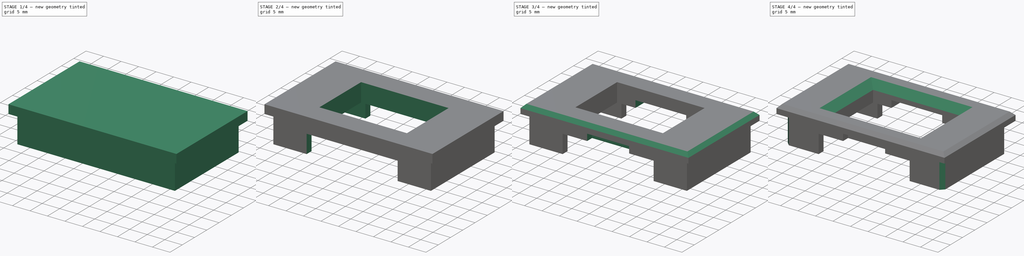
[diagram: build sequence overview — one tinted view per stage of 4, left to right]
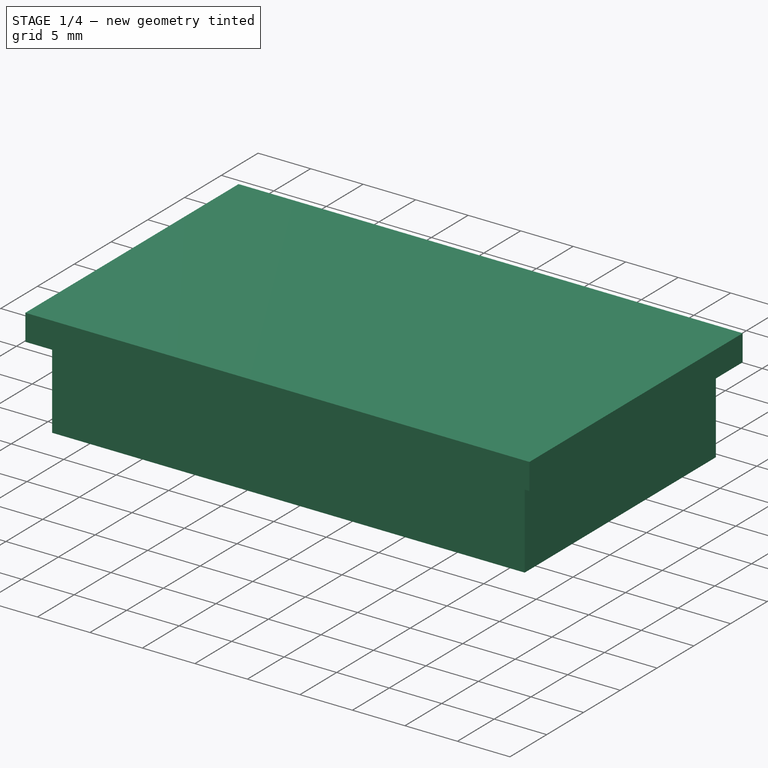
[diagram: stage 1 of 4 — iso view after this stage's code; geometry added in this stage tinted green]
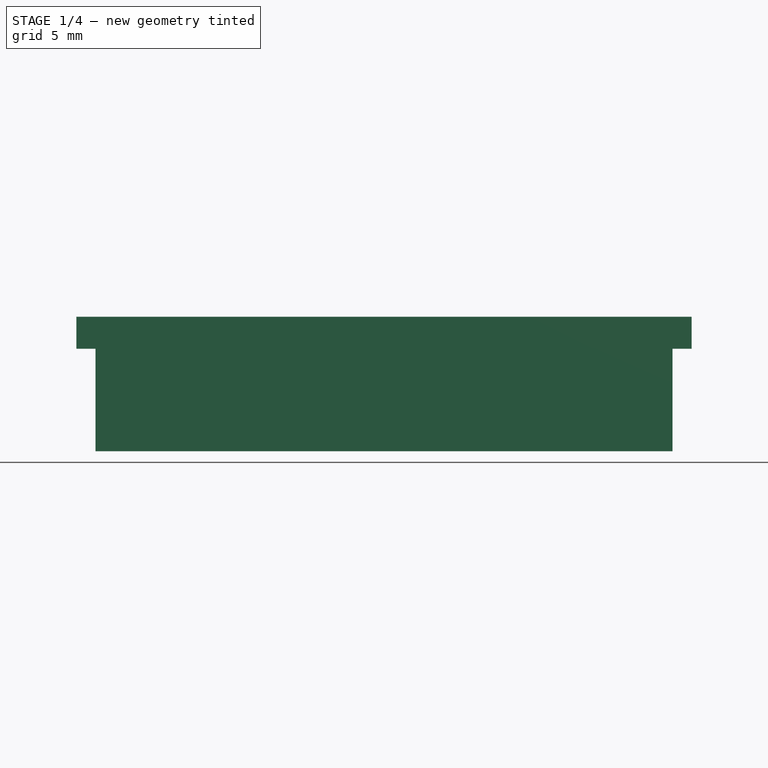
[diagram: stage 1 of 4 — front view after this stage's code; geometry added in this stage tinted green]
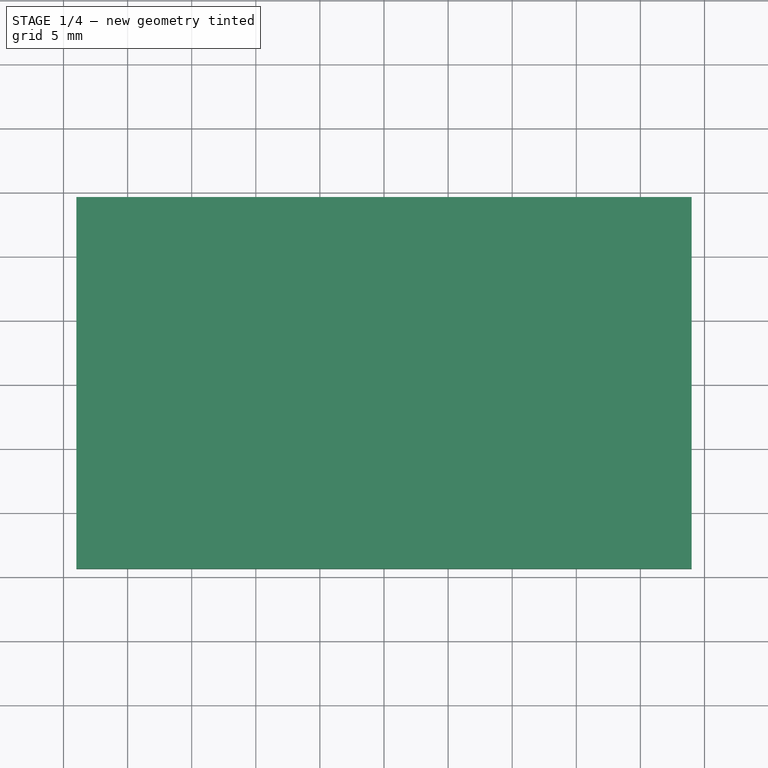
[diagram: stage 1 of 4 — top view after this stage's code; geometry added in this stage tinted green]
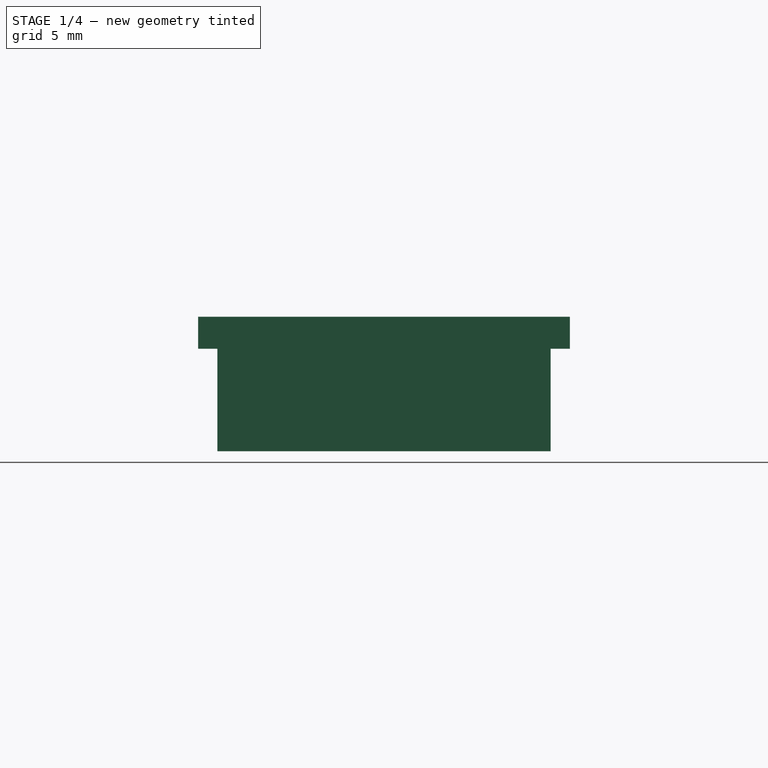
[diagram: stage 1 of 4 — right view after this stage's code; geometry added in this stage tinted green]
FCSTD DOCUMENT  (FreeCAD 0.19R)
Label: display-bracket
License: All rights reserved
LicenseURL: http://en.wikipedia.org/wiki/All_rights_reserved
objects: Sketcher::SketchObject×7, PartDesign::Pocket×5, PartDesign::Chamfer×3, PartDesign::Pad×2, PartDesign::Body×1, App::Part×1
note: 28 computed .brp shape members not serialized (recipe doc carries the construction recipe); baked Part::Feature solids carry a one-line shape summary decoded from their .brp

FEATURE [Sketcher::SketchObject] Sketch
  FullyConstrained = true
  MapMode = 5
  Support = -> [XY_Plane001]
  sketch-geometry (6):
    g0: LineSegment StartX=-22.5 StartY=-13 StartZ=0 EndX=22.5 EndY=-13 EndZ=0
    g1: LineSegment StartX=22.5 StartY=-13 StartZ=0 EndX=22.5 EndY=13 EndZ=0
    g2: LineSegment StartX=22.5 StartY=13 StartZ=0 EndX=-22.5 EndY=13 EndZ=0
    g3: LineSegment StartX=-22.5 StartY=13 StartZ=0 EndX=-22.5 EndY=-13 EndZ=0
    g4: GeomPoint X=-22.5 Y=0 Z=0
    g5: GeomPoint X=0 Y=-13 Z=0
  constraints (14):
    c: Coincident(g0,g1)
    c: Coincident(g1,g2)
    c: Coincident(g2,g3)
    c: Coincident(g3,g0)
    c: Horizontal(g0)
    c: Horizontal(g2)
    c: Vertical(g1)
    c: Vertical(g3)
    c: Distance(g0) = 45
    c: Distance(g3) = 26
    c: Symmetric(g2,g0,g4)
    c: PointOnObject(g4,g-1)
    c: Symmetric(g0,g0,g5)
    c: PointOnObject(g5,g-2)
FEATURE [PartDesign::Pad] Pad
  Direction = (1,1,1)
  Length = 8
  Length2 = 100
  Profile = -> Sketch
  Type = 0
FEATURE [Sketcher::SketchObject] Sketch001
  FullyConstrained = true
  MapMode = 5
  Placement = pos=(0,0,8) rot=(0,0,1;0rad)
  Support = -> [Pad]
  sketch-geometry (6):
    g0: LineSegment StartX=-24 StartY=-14.5 StartZ=0 EndX=24 EndY=-14.5 EndZ=0
    g1: LineSegment StartX=24 StartY=-14.5 StartZ=0 EndX=24 EndY=14.5 EndZ=0
    g2: LineSegment StartX=24 StartY=14.5 StartZ=0 EndX=-24 EndY=14.5 EndZ=0
    g3: LineSegment StartX=-24 StartY=14.5 StartZ=0 EndX=-24 EndY=-14.5 EndZ=0
    g4: GeomPoint X=-24 Y=0 Z=0
    g5: GeomPoint X=0 Y=-14.5 Z=0
  constraints (14):
    c: Coincident(g0,g1)
    c: Coincident(g1,g2)
    c: Coincident(g2,g3)
    c: Coincident(g3,g0)
    c: Horizontal(g0)
    c: Horizontal(g2)
    c: Vertical(g1)
    c: Vertical(g3)
    c: Symmetric(g2,g0,g4)
    c: Symmetric(g0,g0,g5)
    c: PointOnObject(g5,g-2)
    c: PointOnObject(g4,g-1)
    c: Distance(g3) = 29
    c: Distance(g0) = 48
FEATURE [PartDesign::Pad] Pad001
  BaseFeature = -> Pad
  Direction = (1,1,1)
  Length = 2.5
  Length2 = 100
  Profile = -> Sketch001
  Type = 0
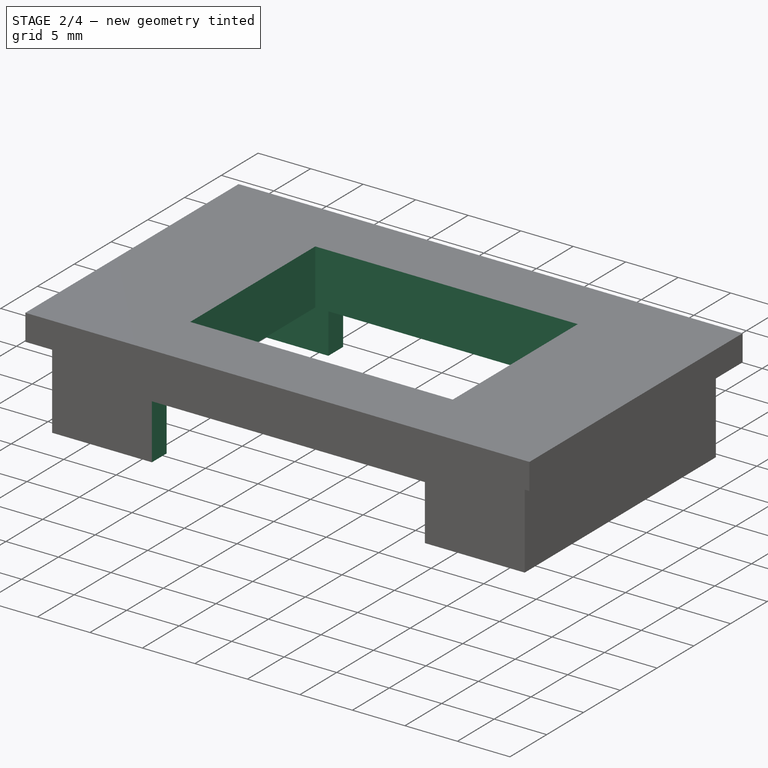
[diagram: stage 2 of 4 — iso view after this stage's code; geometry added in this stage tinted green]
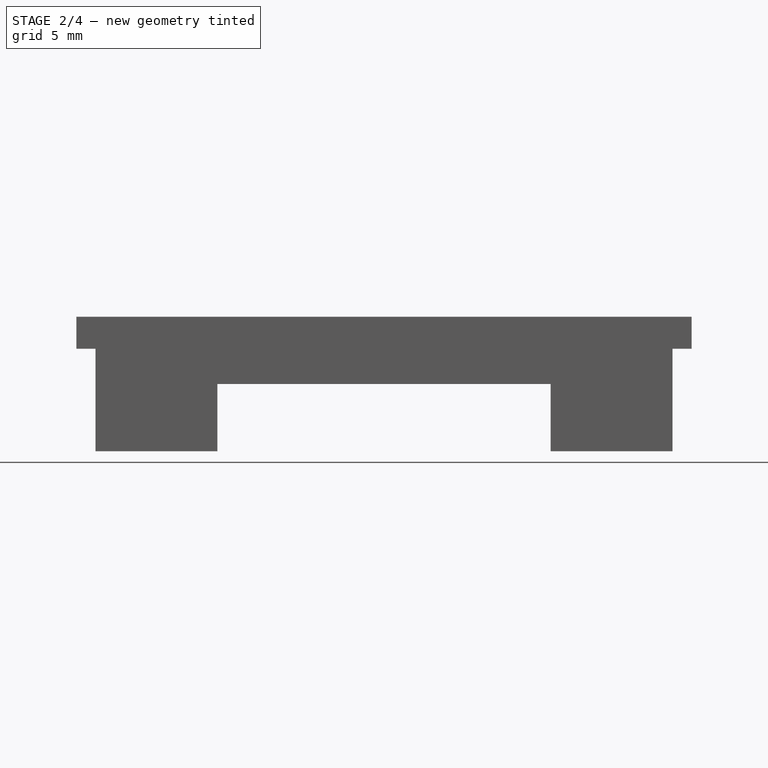
[diagram: stage 2 of 4 — front view after this stage's code; geometry added in this stage tinted green]
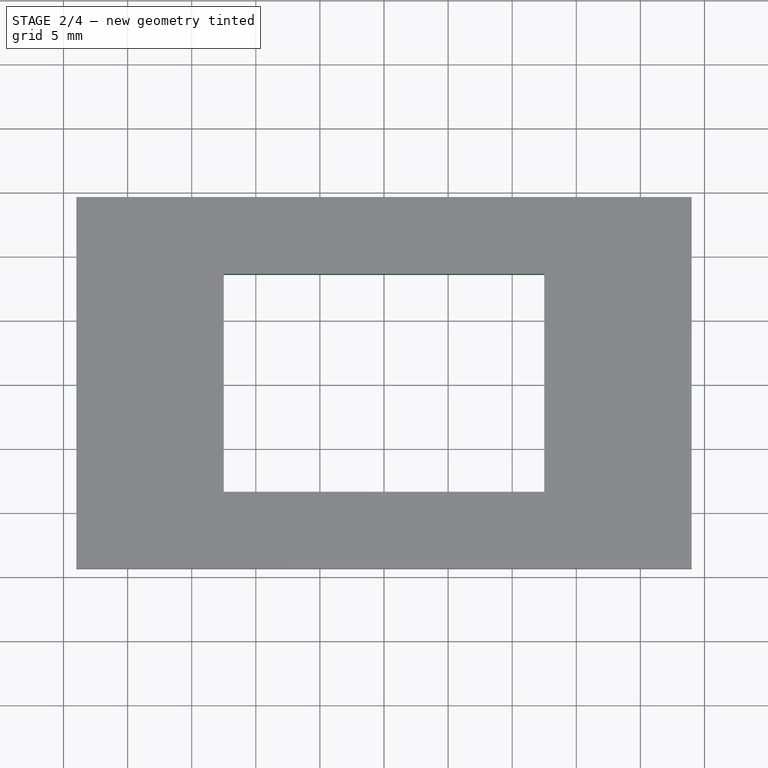
[diagram: stage 2 of 4 — top view after this stage's code; geometry added in this stage tinted green]
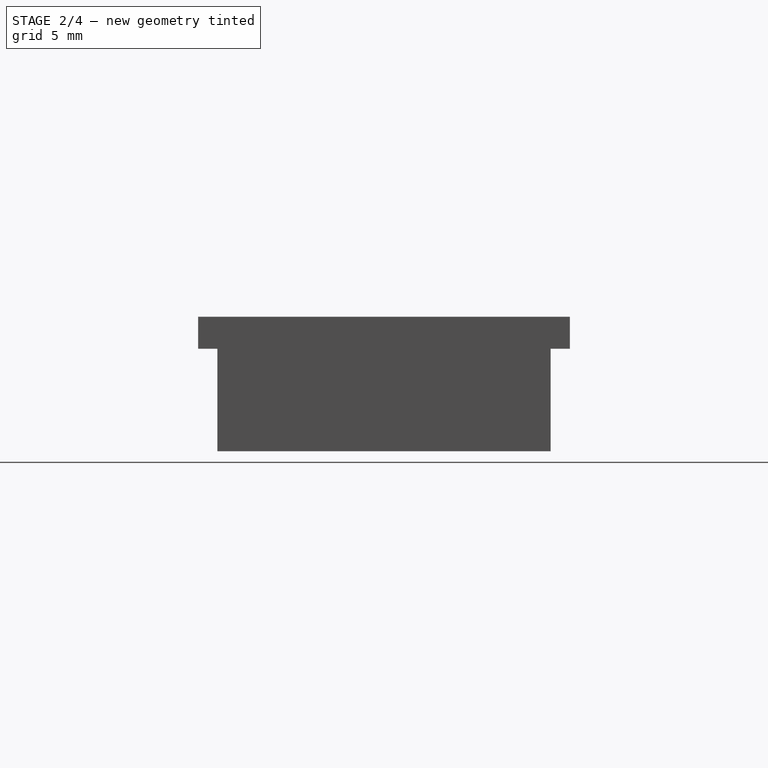
[diagram: stage 2 of 4 — right view after this stage's code; geometry added in this stage tinted green]
FEATURE [Sketcher::SketchObject] Sketch002
  FullyConstrained = true
  MapMode = 5
  Placement = pos=(0,0,10.5) rot=(0,0,1;0rad)
  Support = -> [Pad001]
  sketch-geometry (6):
    g0: LineSegment StartX=-12.5 StartY=-8.5 StartZ=0 EndX=12.5 EndY=-8.5 EndZ=0
    g1: LineSegment StartX=12.5 StartY=-8.5 StartZ=0 EndX=12.5 EndY=8.5 EndZ=0
    g2: LineSegment StartX=12.5 StartY=8.5 StartZ=0 EndX=-12.5 EndY=8.5 EndZ=0
    g3: LineSegment StartX=-12.5 StartY=8.5 StartZ=0 EndX=-12.5 EndY=-8.5 EndZ=0
    g4: GeomPoint X=-12.5 Y=0 Z=0
    g5: GeomPoint X=0 Y=-8.5 Z=0
  constraints (14):
    c: Coincident(g0,g1)
    c: Coincident(g1,g2)
    c: Coincident(g2,g3)
    c: Coincident(g3,g0)
    c: Horizontal(g0)
    c: Horizontal(g2)
    c: Vertical(g1)
    c: Vertical(g3)
    c: Distance(g2) = 25
    c: Distance(g3) = 17
    c: Symmetric(g2,g0,g4)
    c: Symmetric(g0,g0,g5)
    c: PointOnObject(g4,g-1)
    c: PointOnObject(g5,g-2)
FEATURE [PartDesign::Pocket] Pocket
  BaseFeature = -> Pad001
  Length = 5
  Length2 = 100
  Profile = -> Sketch002
  Type = 1
FEATURE [Sketcher::SketchObject] Sketch003
  ExternalGeometry = -> [Pocket]
  FullyConstrained = true
  MapMode = 5
  Placement = pos=(0,0,0) rot=(1,0,0;3.14159rad)
  Support = -> [Pocket]
  sketch-geometry (4):
    g0: LineSegment StartX=-20.5 StartY=-11 StartZ=0 EndX=20.5 EndY=-11 EndZ=0
    g1: LineSegment StartX=20.5 StartY=-11 StartZ=0 EndX=20.5 EndY=11 EndZ=0
    g2: LineSegment StartX=20.5 StartY=11 StartZ=0 EndX=-20.5 EndY=11 EndZ=0
    g3: LineSegment StartX=-20.5 StartY=11 StartZ=0 EndX=-20.5 EndY=-11 EndZ=0
  constraints (12):
    c: Coincident(g0,g1)
    c: Coincident(g1,g2)
    c: Coincident(g2,g3)
    c: Coincident(g3,g0)
    c: Horizontal(g0)
    c: Horizontal(g2)
    c: Vertical(g1)
    c: Vertical(g3)
    c: DistanceX(g1,g-5) = 2
    c: DistanceX(g-4,g2) = 2
    c: DistanceY(g2,g-4) = 2
    c: DistanceY(g-6,g0) = 2
FEATURE [PartDesign::Pocket] Pocket001
  BaseFeature = -> Pocket
  Length = 0
  Length2 = 100
  Offset = -2.75
  Profile = -> Sketch003
  Type = 3
  UpToFace = -> Pocket [Face4]
FEATURE [Sketcher::SketchObject] Sketch004
  FullyConstrained = true
  MapMode = 5
  Placement = pos=(0,0,5.25) rot=(1,0,0;3.14159rad)
  Support = -> [Pocket001]
  sketch-geometry (6):
    g0: LineSegment StartX=-13 StartY=-13.75 StartZ=0 EndX=13 EndY=-13.75 EndZ=0
    g1: LineSegment StartX=13 StartY=-13.75 StartZ=0 EndX=13 EndY=13.75 EndZ=0
    g2: LineSegment StartX=13 StartY=13.75 StartZ=0 EndX=-13 EndY=13.75 EndZ=0
    g3: LineSegment StartX=-13 StartY=13.75 StartZ=0 EndX=-13 EndY=-13.75 EndZ=0
    g4: GeomPoint X=-13 Y=0 Z=0
    g5: GeomPoint X=0 Y=-13.75 Z=0
  constraints (14):
    c: Coincident(g0,g1)
    c: Coincident(g1,g2)
    c: Coincident(g2,g3)
    c: Coincident(g3,g0)
    c: Horizontal(g0)
    c: Horizontal(g2)
    c: Vertical(g1)
    c: Vertical(g3)
    c: Distance(g3) = 27.5
    c: Distance(g0) = 26
    c: Symmetric(g0,g0,g5)
    c: Symmetric(g2,g0,g4)
    c: PointOnObject(g4,g-1)
    c: PointOnObject(g5,g-2)
FEATURE [PartDesign::Pocket] Pocket002
  BaseFeature = -> Pocket001
  Length = 5
  Length2 = 100
  Profile = -> Sketch004
  Reversed = true
  Type = 1
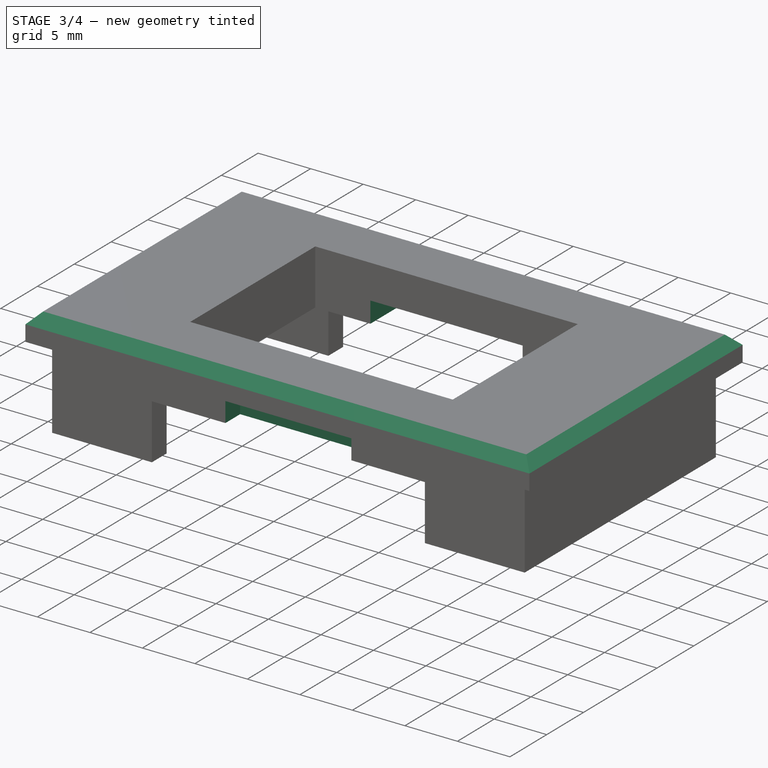
[diagram: stage 3 of 4 — iso view after this stage's code; geometry added in this stage tinted green]
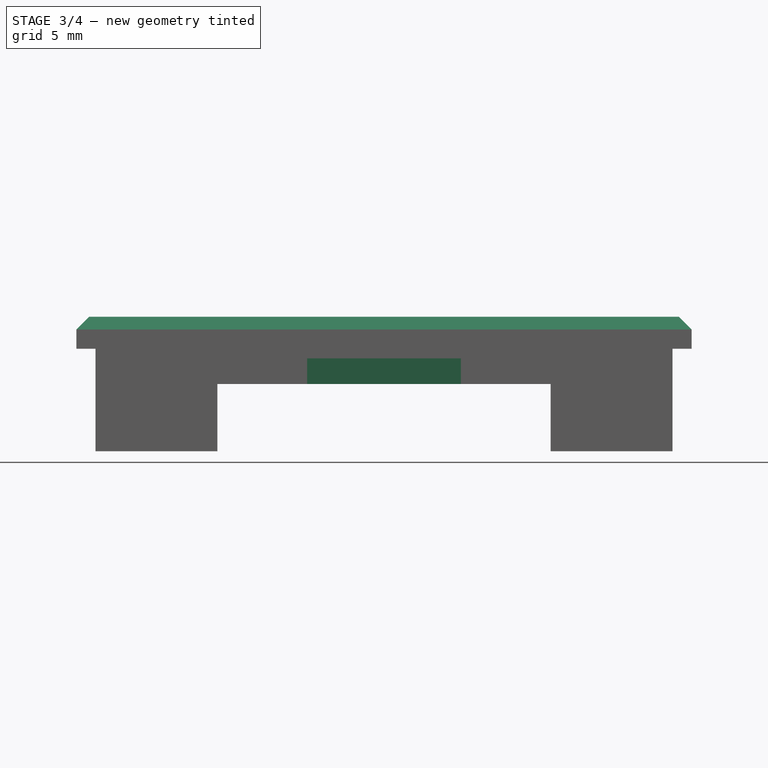
[diagram: stage 3 of 4 — front view after this stage's code; geometry added in this stage tinted green]
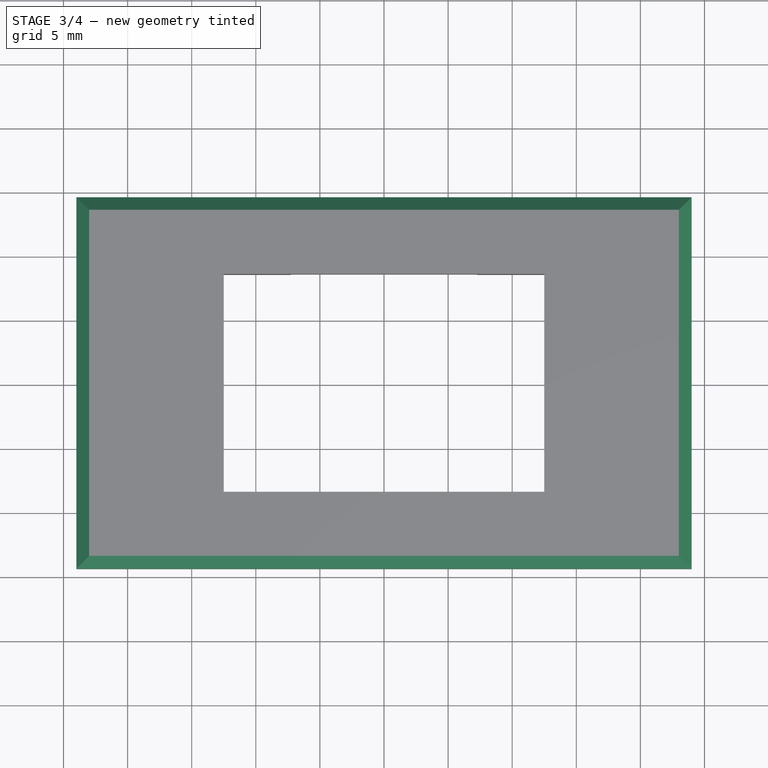
[diagram: stage 3 of 4 — top view after this stage's code; geometry added in this stage tinted green]
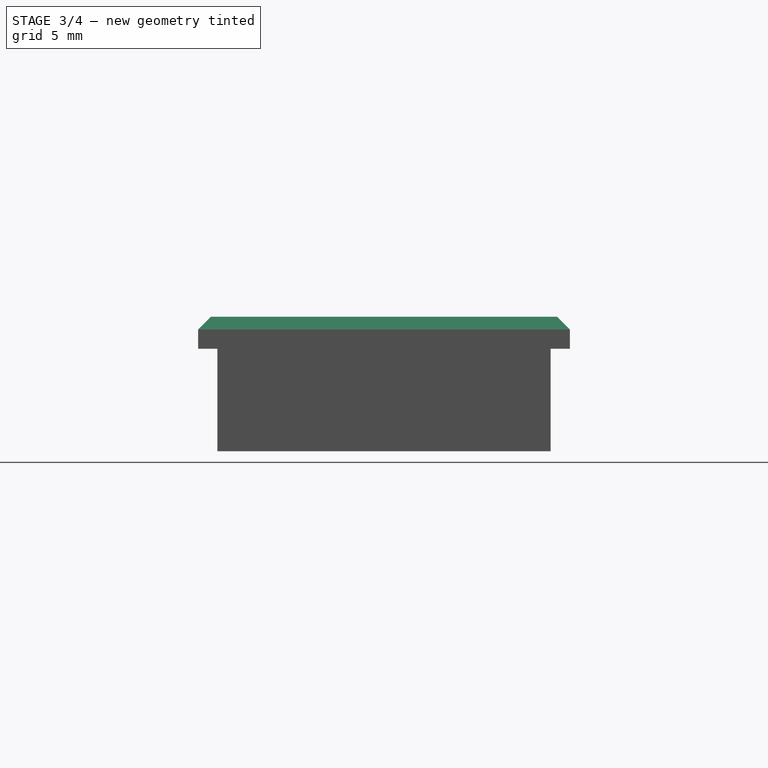
[diagram: stage 3 of 4 — right view after this stage's code; geometry added in this stage tinted green]
FEATURE [Sketcher::SketchObject] Sketch005  label="Sketch005-pin-pocket"
  ExternalGeometry = -> [Pocket002]
  FullyConstrained = true
  MapMode = 5
  Placement = pos=(0,0,5.25) rot=(1,0,0;3.14159rad)
  Support = -> [Pocket002]
  sketch-geometry (5):
    g0: LineSegment StartX=-6 StartY=11 StartZ=0 EndX=6 EndY=11 EndZ=0
    g1: LineSegment StartX=6 StartY=11 StartZ=0 EndX=6 EndY=13.5 EndZ=0
    g2: LineSegment StartX=6 StartY=13.5 StartZ=0 EndX=-6 EndY=13.5 EndZ=0
    g3: LineSegment StartX=-6 StartY=13.5 StartZ=0 EndX=-6 EndY=11 EndZ=0
    g4: GeomPoint X=0 Y=11 Z=0
  constraints (13):
    c: Coincident(g0,g1)
    c: Coincident(g1,g2)
    c: Coincident(g2,g3)
    c: Coincident(g3,g0)
    c: Horizontal(g0)
    c: Horizontal(g2)
    c: Vertical(g1)
    c: Vertical(g3)
    c: Symmetric(g0,g0,g4)
    c: PointOnObject(g4,g-2)
    c: Distance(g2) = 12
    c: DistanceY(g-4,g0) = 2.5
    c: DistanceY(g-4,g1) = 5
FEATURE [PartDesign::Pocket] Pocket003
  BaseFeature = -> Pocket002
  Length = 2
  Length2 = 100
  Profile = -> Sketch005
  Type = 0
FEATURE [Sketcher::SketchObject] Sketch006  label="Sketch006-flex-pocket"
  ExternalGeometry = -> [Pocket003]
  FullyConstrained = true
  MapMode = 5
  Placement = pos=(0,0,5.25) rot=(1,0,0;3.14159rad)
  Support = -> [Pocket003]
  sketch-geometry (5):
    g0: LineSegment StartX=-7.25 StartY=-13 StartZ=0 EndX=7.25 EndY=-13 EndZ=0
    g1: LineSegment StartX=7.25 StartY=-13 StartZ=0 EndX=7.25 EndY=-8.5 EndZ=0
    g2: LineSegment StartX=7.25 StartY=-8.5 StartZ=0 EndX=-7.25 EndY=-8.5 EndZ=0
    g3: LineSegment StartX=-7.25 StartY=-8.5 StartZ=0 EndX=-7.25 EndY=-13 EndZ=0
    g4: GeomPoint X=0 Y=-8.5 Z=0
  constraints (13):
    c: Coincident(g0,g1)
    c: Coincident(g1,g2)
    c: Coincident(g2,g3)
    c: Coincident(g3,g0)
    c: Horizontal(g0)
    c: Horizontal(g2)
    c: Vertical(g1)
    c: Vertical(g3)
    c: Distance(g2) = 14.5
    c: Symmetric(g2,g1,g4)
    c: PointOnObject(g4,g-2)
    c: PointOnObject(g1,g-3)
    c: PointOnObject(g0,g-4)
FEATURE [PartDesign::Pocket] Pocket004
  BaseFeature = -> Pocket003
  Length = 2
  Length2 = 100
  Profile = -> Sketch006
  Type = 0
FEATURE [PartDesign::Chamfer] Chamfer
  Angle = 45
  Base = -> Pocket004 [Edge10,Edge4,Edge16,Edge7]
  BaseFeature = -> Pocket004
  ChamferType = 0
  FlipDirection = false
  Size = 1
  Size2 = 1
  SupportTransform = false
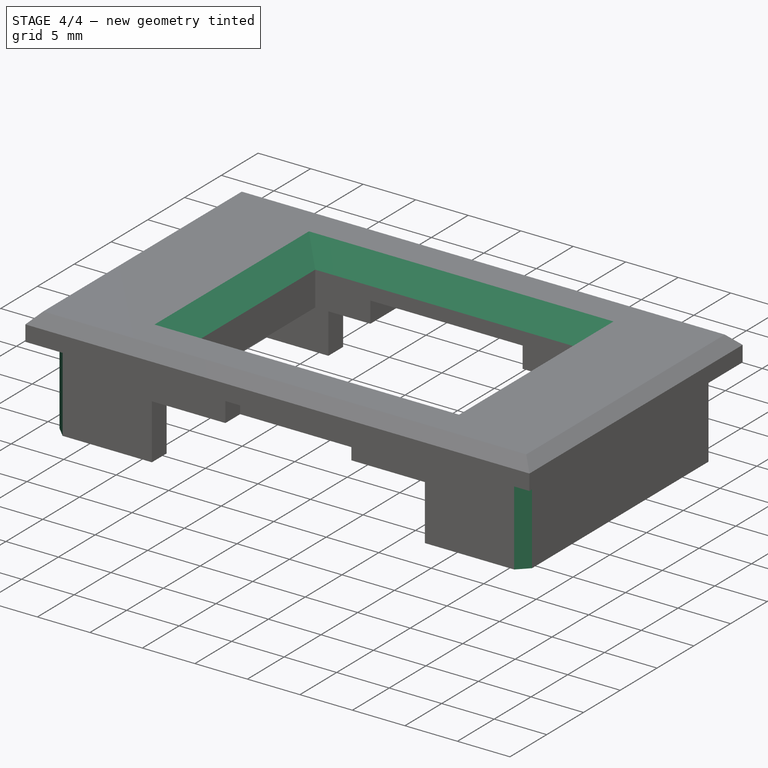
[diagram: stage 4 of 4 — iso view after this stage's code; geometry added in this stage tinted green]
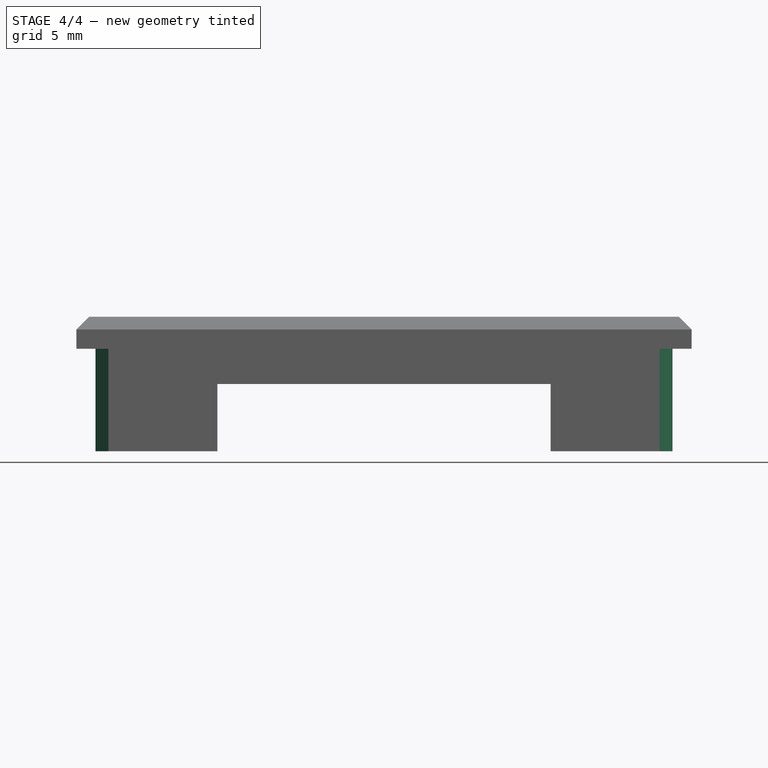
[diagram: stage 4 of 4 — front view after this stage's code; geometry added in this stage tinted green]
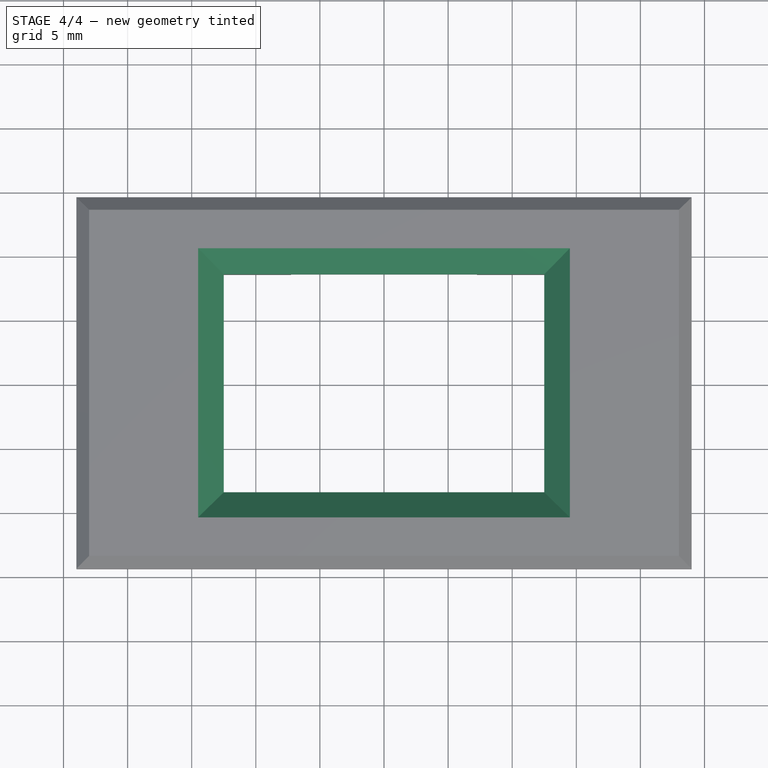
[diagram: stage 4 of 4 — top view after this stage's code; geometry added in this stage tinted green]
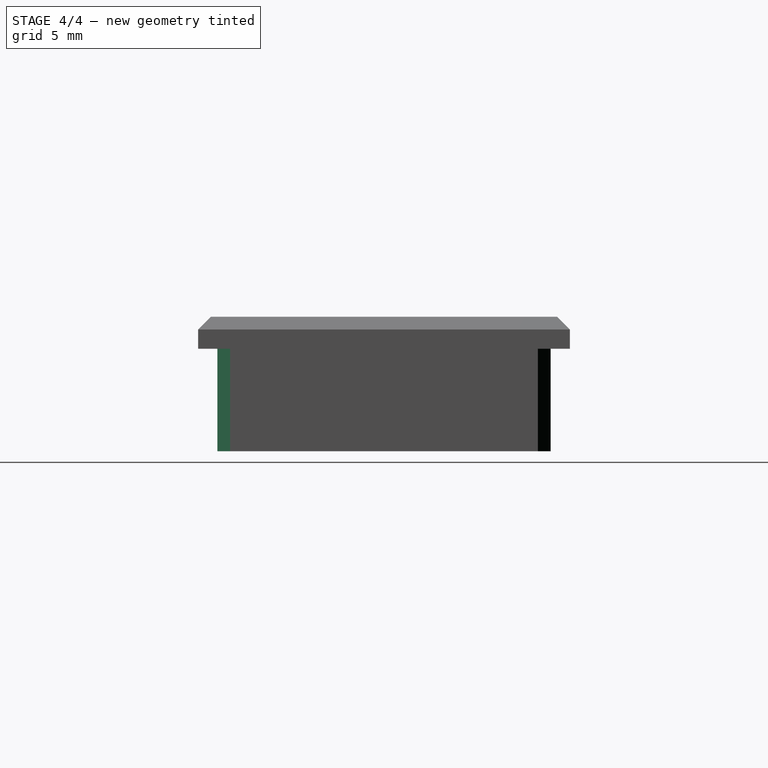
[diagram: stage 4 of 4 — right view after this stage's code; geometry added in this stage tinted green]
FEATURE [PartDesign::Chamfer] Chamfer001
  Angle = 45
  Base = -> Chamfer [Edge26,Edge27,Edge24,Edge25]
  BaseFeature = -> Chamfer
  ChamferType = 0
  FlipDirection = false
  Size = 2
  Size2 = 1
  SupportTransform = false
FEATURE [PartDesign::Chamfer] Chamfer002
  Angle = 45
  Base = -> Chamfer001 [Edge88,Edge98,Edge89,Edge97]
  BaseFeature = -> Chamfer001
  ChamferType = 0
  FlipDirection = false
  Size = 1
  Size2 = 1
  SupportTransform = false
FEATURE [PartDesign::Body] Body
  Group = -> [Sketch,Pad,Sketch001,Pad001,Sketch002,Pocket,Sketch003,Pocket001,Sketch004,Pocket002,Sketch005,Pocket003,Sketch006,Pocket004,Chamfer,Chamfer001,Chamfer002]
  Origin = -> Origin001
  Tip = -> Chamfer002
FEATURE [App::Part] Part
  Group = -> [Body]
  Origin = -> Origin
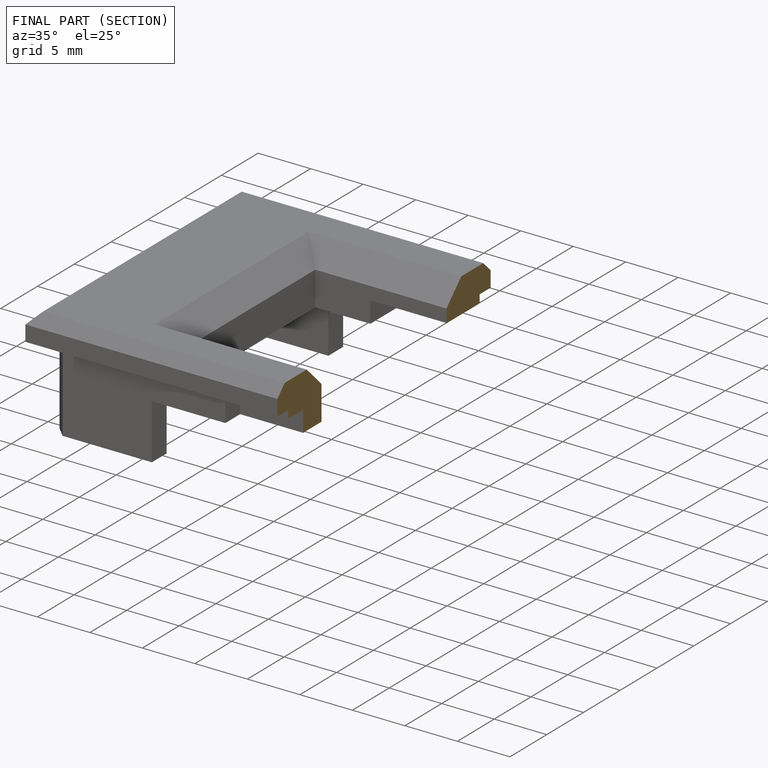
[diagram: finished part — half-section view (interior)]
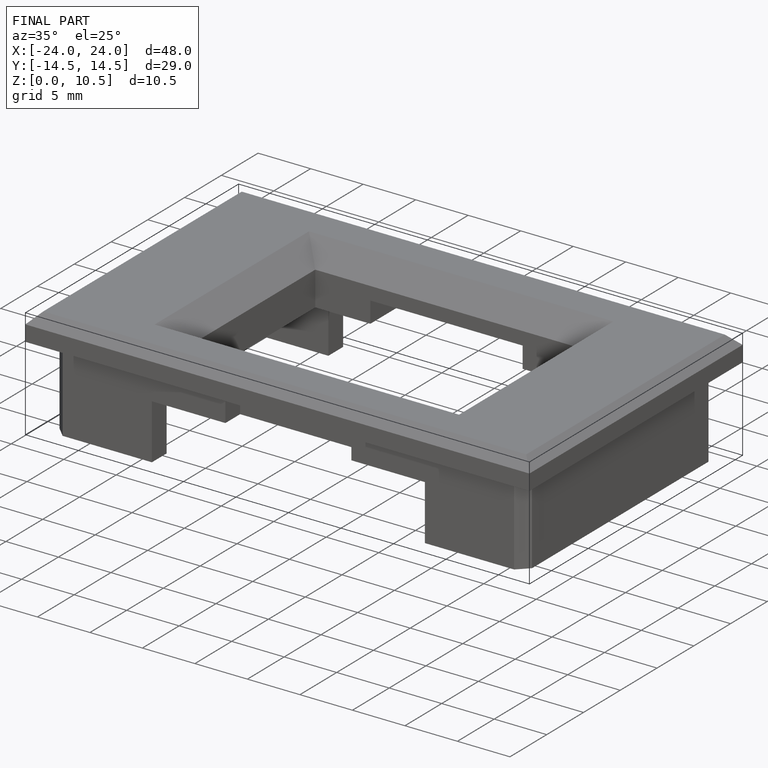
[diagram: finished part — iso view with bounding-box wireframe]
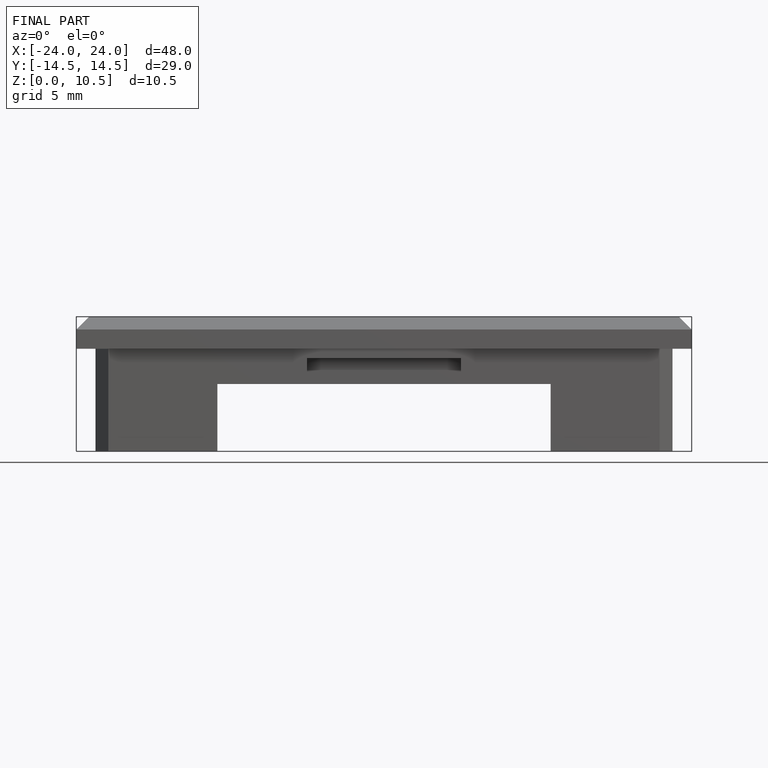
[diagram: finished part — front view with bounding-box wireframe]
